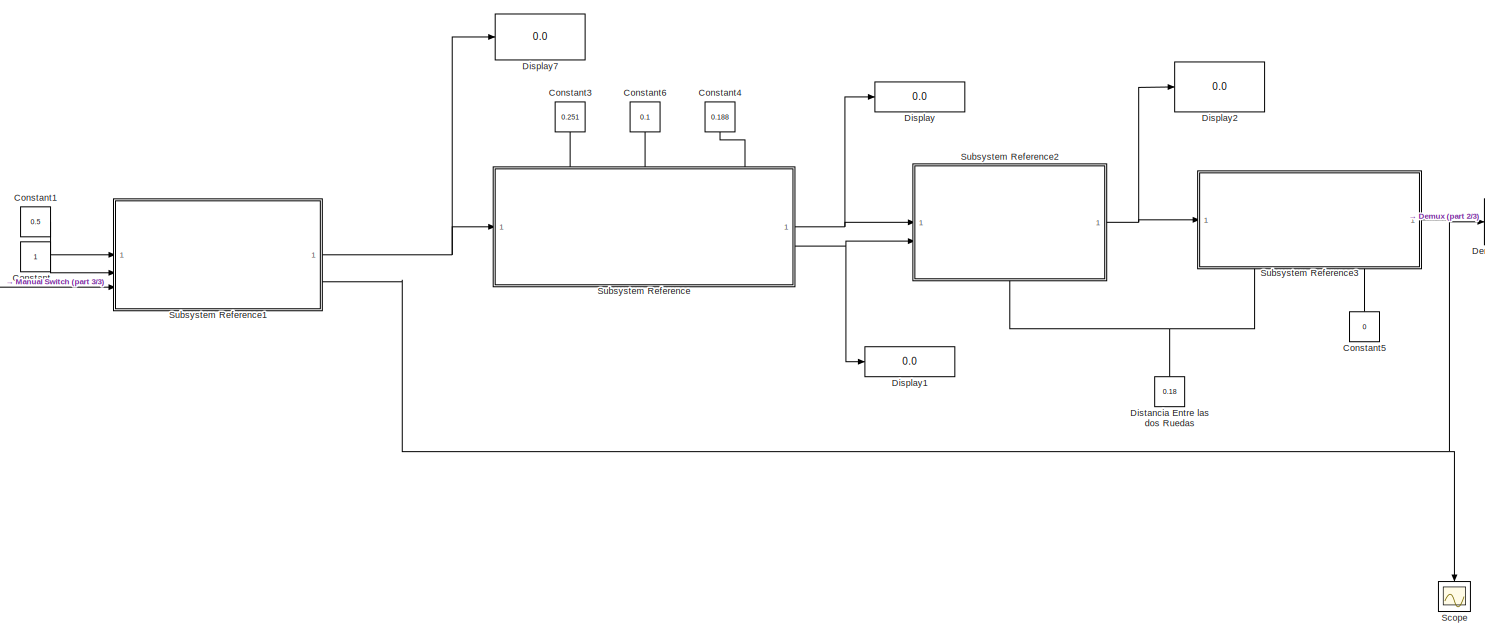
[diagram: root canvas - part 1/3, center side, full height]
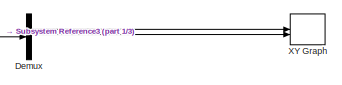
[diagram: root canvas - part 2/3, middle right region]
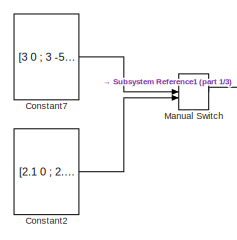
[diagram: root canvas - part 3/3, middle left region]
MODEL slx_de52f72351b8
KIND model
CONFIG AbsTol = auto
CONFIG EnableMultiTasking = on
CONFIG FixedStep = 0.01
CONFIG MaxStep = auto
CONFIG MinStep = auto
CONFIG RelTol = 1e-3
CONFIG SampleTimeConstraint = Unconstrained
CONFIG SolverName = FixedStepDiscrete
CONFIG StartTime = 0.0
CONFIG StopTime = inf
BLOCK [Constant] Constant
BLOCK [Constant] Constant1
  Value = 0.5
BLOCK [Constant] Constant2
  Value = [2.1 0 ; 2.1 12 ; 3 12 ; 3 14]
BLOCK [Constant] Constant3
  NameLocation = left
  Value = 0.251
BLOCK [Constant] Constant4
  NameLocation = left
  Value = 0.188
BLOCK [Constant] Constant5
  NameLocation = right
  Value = 0
BLOCK [Constant] Constant6
  NameLocation = left
  Value = 0.1
BLOCK [Constant] Constant7
  Value = [3 0 ; 3 -5 ; 5 -6.5 ; 7 -6.5]
BLOCK [Demux] Demux
  Outputs = 3
BLOCK [Display] Display
  Decimation = 1
BLOCK [Display] Display1
  Decimation = 1
BLOCK [Display] Display2
  Decimation = 1
BLOCK [Display] Display7
  Decimation = 1
BLOCK [Constant] Distancia Entre las dos Ruedas
  NameLocation = right
  Value = 0.18
BLOCK [ManualSwitch] Manual Switch
  CurrentSetting = 0
BLOCK [Scope] Scope
  Floating = off
  NameLocation = left
  NumInputPorts = 1
  ScopeSpecificationString = Simulink.scopes.TimeScopeBlockCfg('CurrentConfiguration', extmgr.ConfigurationSet(extmgr.Configuration('Core','General UI',true),extmgr.Configuration('Core','Source UI',true),extmgr.Configuration('Sources','WiredSimulink',true),extmgr.Configuration('Visuals','Time Domain',true,'SerializedDisplays',{struct('MinYLimReal','-0.20325','MaxYLimReal','1.82778','YLabelReal','','MinYLimMag','0.00000','MaxY...<+1513ch>
BLOCK [SubSystem] Subsystem Reference
  PortSchema = {"entries":[{"content":{"sides":[{"content":{"connectorIds":["In1"]},"type":"ConnectorPlacement.EquallySpacedRectSide","uuid":"42fc63ee-98cb-4907-b38c-798ae802ff5d"},{"content":{"connectorIds":["Out1","Out2"],"side":"RIGHT"},"type":"ConnectorPlacement.EquallySpacedRectSide","uuid":"0ed8d766-5a28-4c23-ac29-cceb2cc32c2c"},{"content":{"connectorIds":["In3","In4","In2"],"side":"TOP"},"type":"Connector...<+264ch>
  ReferencedSubsystem = Sistema_Anticolision
BLOCK [SubSystem] Subsystem Reference1
  PortSchema = {"entries":[{"content":{"sides":[{"content":{"connectorIds":["In1","In2","In4"]},"type":"ConnectorPlacement.EquallySpacedRectSide","uuid":"6b6fc5be-cae0-4857-832a-2f7785a6c93c"},{"content":{"connectorIds":["Out1","In3"],"side":"RIGHT"},"type":"ConnectorPlacement.EquallySpacedRectSide","uuid":"8fe82417-bab0-4886-921f-ac778f6614fa"},{"content":{"side":"TOP"},"type":"ConnectorPlacement.EquallySpacedR...<+240ch>
  ReferencedSubsystem = Trayectoria
BLOCK [SubSystem] Subsystem Reference2
  PortSchema = {"entries":[{"content":{"sides":[{"content":{"connectorIds":["In1","In2"]},"type":"ConnectorPlacement.EquallySpacedRectSide","uuid":"296ec3ce-a2cd-47ea-b6d2-93e60c3d408c"},{"content":{"connectorIds":["Out1"],"side":"RIGHT"},"type":"ConnectorPlacement.EquallySpacedRectSide","uuid":"4b69a479-ec69-4494-a3b5-f93cec5223a5"},{"content":{"side":"TOP"},"type":"ConnectorPlacement.EquallySpacedRectSide","uu...<+377ch>
  ReferencedSubsystem = Control_Velocidad
BLOCK [SubSystem] Subsystem Reference3
  PortSchema = {"entries":[{"content":{"sides":[{"content":{"connectorIds":["In1"]},"type":"ConnectorPlacement.EquallySpacedRectSide","uuid":"7855b2c1-0050-4d66-864b-7e2be2e7053b"},{"content":{"connectorIds":["Out1"],"side":"RIGHT"},"type":"ConnectorPlacement.EquallySpacedRectSide","uuid":"cfa3be09-6f70-47d5-b84a-2b36332d9961"},{"content":{"side":"TOP"},"type":"ConnectorPlacement.EquallySpacedRectSide","uuid":"1...<+377ch>
  ReferencedSubsystem = Odometria
BLOCK [Record] XY Graph
  CompatibilityTag = XY
  FileSettingsInternal = {"entries":[{"content":{"excelSettings":{"content":{},"type":"Streamout.ExcelSettings"}},"type":"Streamout.FileSettingStorage","uuid":""}],"packageUris":["http:\/\/schema.mathworks.com\/mf0\/streamout_blocks\/R2020a"],"version":"1.0"}
  Layout = [1 1]
  SignalsInternal = {"entries":[{"content":{"signals":[{"content":{"blockPath":[],"dimensions":[1],"domain":"","lineColor":"#a2142f","plots":[ 1 ],"port":1,"signalID":1,"signalName":"Demux:1"},"type":"RecordBlkView.Signal","uuid":""},{"content":{"blockPath":[],"dimensions":[1],"domain":"","lineColor":"#139fff","plots":[ 1 ],"port":2,"signalID":2,"signalName":"Demux:2"},"type":"RecordBlkView.Signal","uuid":""}]},"type...<+138ch>
  VisualizationBindings = {"xyplotplugin":{"info":[{"series":[{"bindingParametersList":[{"parameter":"X-Axis","signalID":1,"signalName":"Demux:1"},{"parameter":"Y-Axis","signalID":2,"signalName":"Demux:2"}],"seriesID":0}],"subplotID":1}]}}
LINE Constant1:1 -> Subsystem Reference1:1
LINE Constant2:1 -> Manual Switch:2
LINE Constant3:1 -> Subsystem Reference:3
LINE Constant4:1 -> Subsystem Reference:2
LINE Constant5:1 -> Subsystem Reference3:3
LINE Constant6:1 -> Subsystem Reference:4
LINE Constant7:1 -> Manual Switch:1
LINE Constant:1 -> Subsystem Reference1:2
LINE Demux:1 -> XY Graph:1
LINE Demux:2 -> XY Graph:2
NET Distancia Entre las dos Ruedas:1 -> Subsystem Reference2:3, Subsystem Reference3:2
LINE Manual Switch:1 -> Subsystem Reference1:4
NET Subsystem Reference1:1 -> Display7:1, Subsystem Reference:1
NET Subsystem Reference2:1 -> Display2:1, Subsystem Reference3:1
NET Subsystem Reference3:1 -> Demux:1, Scope:1, Subsystem Reference1:3
NET Subsystem Reference:1 -> Display:1, Subsystem Reference2:1
NET Subsystem Reference:2 -> Display1:1, Subsystem Reference2:2
note: NET lines group one-source signal fan-out (src -> all destinations, sorted); 1:1 wires keep LINE
